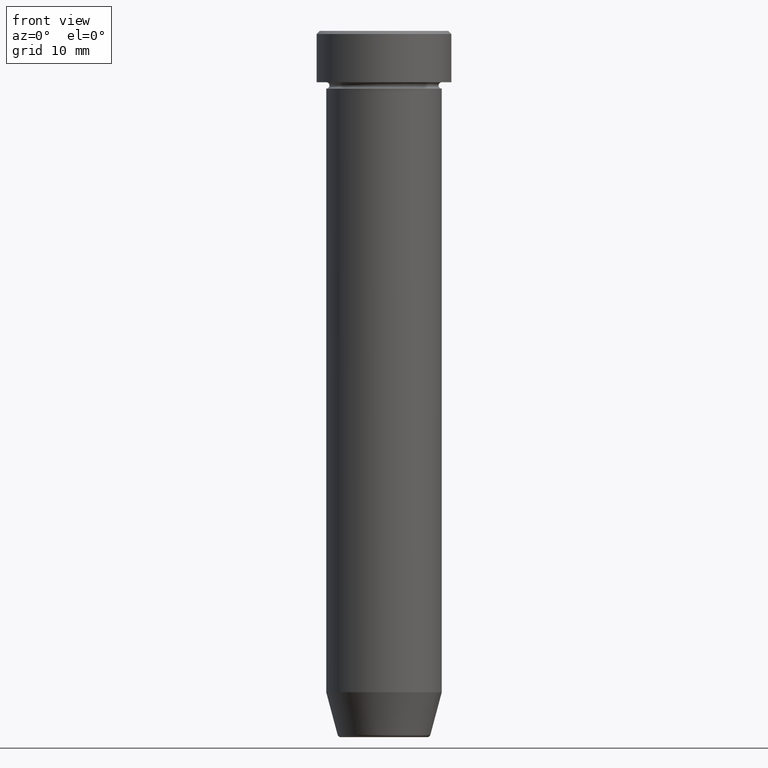
[diagram: clean part render]
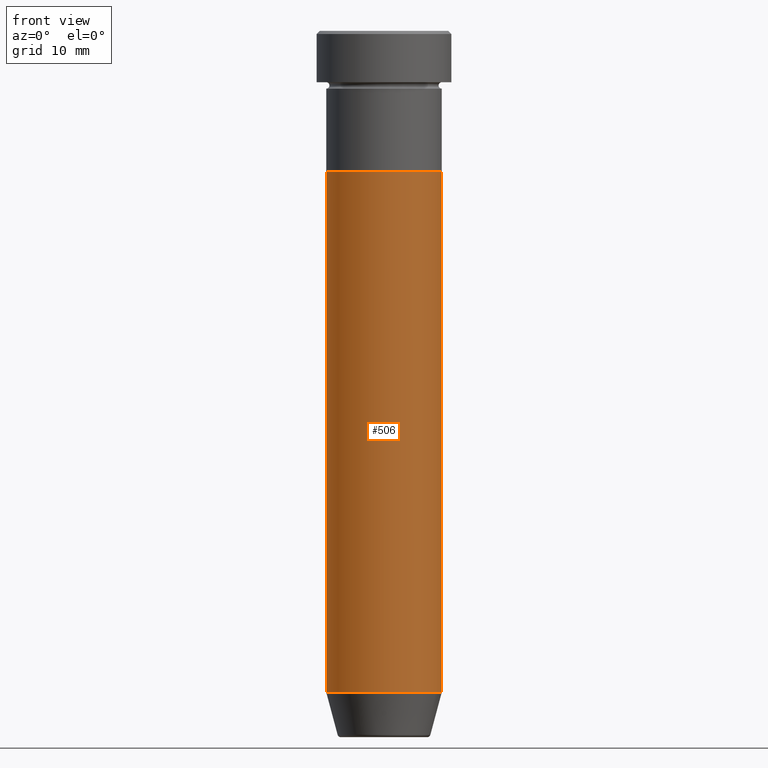
[diagram: same view with one face highlighted and labeled with its STEP entity id]
A machine part, front view. The second image highlights one B-rep face of the part: STEP entity #506.
In plain terms, the highlighted cylindrical surface (partial cylindrical patch) has radius 9 mm, axis along (-0, -0, 1).
Its self-contained STEP definition (entity closure, byte-faithful):
#10 = VERTEX_POINT ( 'NONE', #160 ) ;
#29 = DIRECTION ( 'NONE',  ( -0.000000000000000000, -0.000000000000000000, 1.000000000000000000 ) ) ;
#49 = DIRECTION ( 'NONE',  ( -0.000000000000000000, -0.000000000000000000, 1.000000000000000000 ) ) ;
#75 = EDGE_LOOP ( 'NONE', ( #374, #547, #78, #397 ) ) ;
#78 = ORIENTED_EDGE ( 'NONE', *, *, #398, .T. ) ;
#106 = EDGE_CURVE ( 'NONE', #110, #536, #145, .T. ) ;
#110 = VERTEX_POINT ( 'NONE', #275 ) ;
#145 = CIRCLE ( 'NONE', #466, 9.000000000000000000 ) ;
#160 = CARTESIAN_POINT ( 'NONE',  ( -9.000000000000000000, 1.102182119232617714E-15, -22.00000000000000000 ) ) ;
#181 = LINE ( 'NONE', #558, #362 ) ;
#195 = CARTESIAN_POINT ( 'NONE',  ( -9.000000000000000000, 1.102182119232617714E-15, 0.000000000000000000 ) ) ;
#232 = DIRECTION ( 'NONE',  ( -0.000000000000000000, -0.000000000000000000, 1.000000000000000000 ) ) ;
#273 = AXIS2_PLACEMENT_3D ( 'NONE', #468, #232, #513 ) ;
#275 = CARTESIAN_POINT ( 'NONE',  ( -9.000000000000000000, 1.102182119232617714E-15, -102.9999999999999858 ) ) ;
#304 = CARTESIAN_POINT ( 'NONE',  ( 0.000000000000000000, 0.000000000000000000, 0.000000000000000000 ) ) ;
#329 = AXIS2_PLACEMENT_3D ( 'NONE', #304, #29, #399 ) ;
#331 = DIRECTION ( 'NONE',  ( -0.000000000000000000, -0.000000000000000000, 1.000000000000000000 ) ) ;
#362 = VECTOR ( 'NONE', #331, 1000.000000000000000 ) ;
#371 = CIRCLE ( 'NONE', #273, 9.000000000000000000 ) ;
#374 = ORIENTED_EDGE ( 'NONE', *, *, #417, .F. ) ;
#376 = DIRECTION ( 'NONE',  ( -0.000000000000000000, -0.000000000000000000, 1.000000000000000000 ) ) ;
#391 = CARTESIAN_POINT ( 'NONE',  ( 9.000000000000000000, 0.000000000000000000, -102.9999999999999858 ) ) ;
#394 = VERTEX_POINT ( 'NONE', #423 ) ;
#397 = ORIENTED_EDGE ( 'NONE', *, *, #463, .F. ) ;
#398 = EDGE_CURVE ( 'NONE', #536, #394, #181, .T. ) ;
#399 = DIRECTION ( 'NONE',  ( 1.000000000000000000, 0.000000000000000000, 0.000000000000000000 ) ) ;
#417 = EDGE_CURVE ( 'NONE', #110, #10, #528, .T. ) ;
#423 = CARTESIAN_POINT ( 'NONE',  ( 9.000000000000000000, 0.000000000000000000, -22.00000000000000000 ) ) ;
#427 = DIRECTION ( 'NONE',  ( 1.000000000000000000, 0.000000000000000000, 0.000000000000000000 ) ) ;
#431 = CARTESIAN_POINT ( 'NONE',  ( 0.000000000000000000, 0.000000000000000000, -102.9999999999999858 ) ) ;
#463 = EDGE_CURVE ( 'NONE', #10, #394, #371, .T. ) ;
#466 = AXIS2_PLACEMENT_3D ( 'NONE', #431, #49, #427 ) ;
#468 = CARTESIAN_POINT ( 'NONE',  ( 0.000000000000000000, 0.000000000000000000, -22.00000000000000000 ) ) ;
#487 = FACE_OUTER_BOUND ( 'NONE', #75, .T. ) ;
#506 = ADVANCED_FACE ( 'NONE', ( #487 ), #580, .T. ) ;
#513 = DIRECTION ( 'NONE',  ( 1.000000000000000000, 0.000000000000000000, 0.000000000000000000 ) ) ;
#528 = LINE ( 'NONE', #195, #593 ) ;
#536 = VERTEX_POINT ( 'NONE', #391 ) ;
#547 = ORIENTED_EDGE ( 'NONE', *, *, #106, .T. ) ;
#558 = CARTESIAN_POINT ( 'NONE',  ( 9.000000000000000000, 0.000000000000000000, 0.000000000000000000 ) ) ;
#580 = CYLINDRICAL_SURFACE ( 'NONE', #329, 9.000000000000000000 ) ;
#593 = VECTOR ( 'NONE', #376, 1000.000000000000000 ) ;